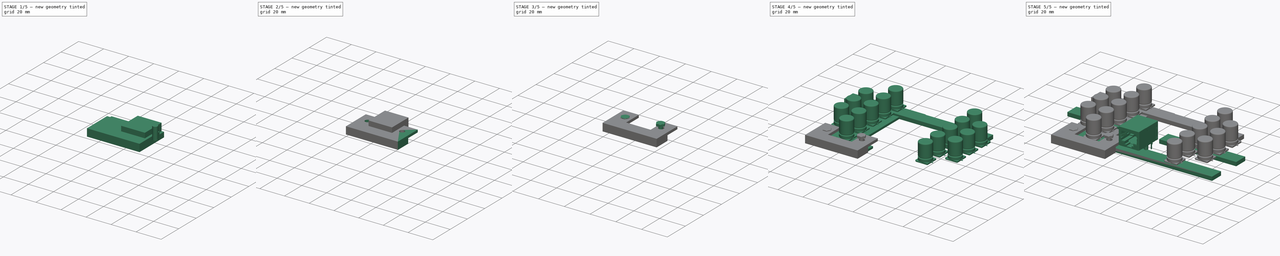
[diagram: build sequence overview — one tinted view per stage of 5, left to right]
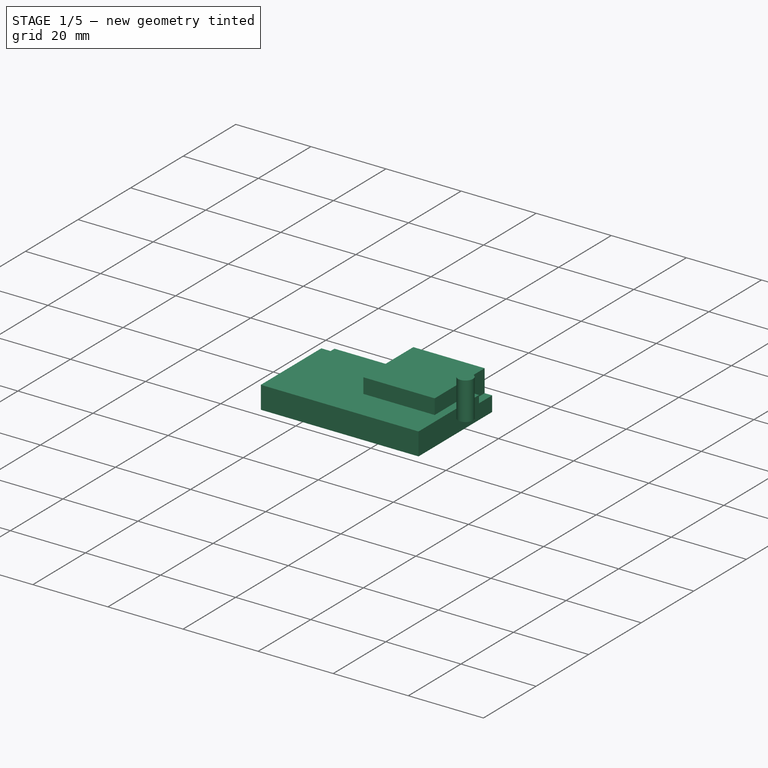
[diagram: stage 1 of 5 — iso view after this stage's code; geometry added in this stage tinted green]
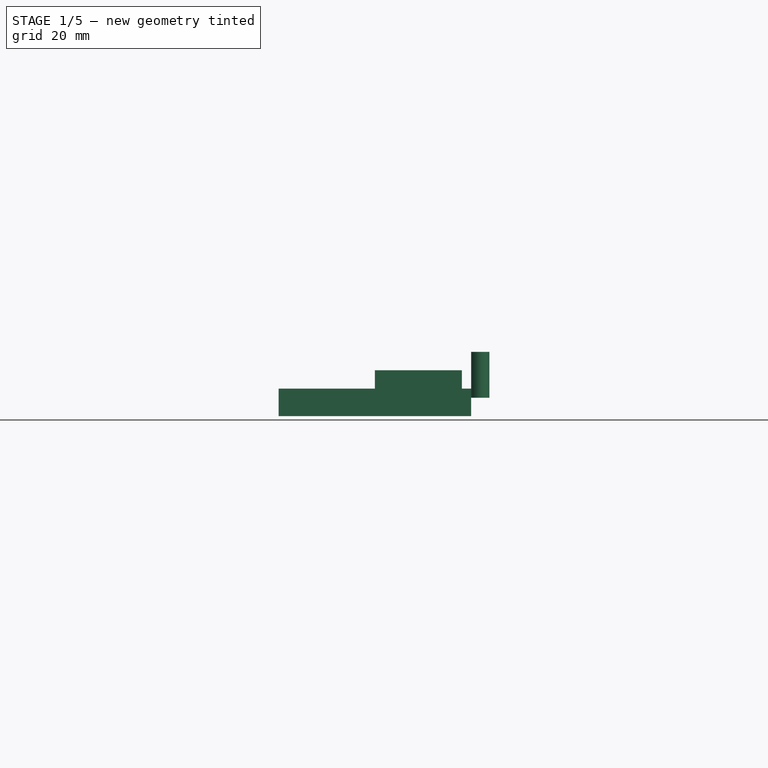
[diagram: stage 1 of 5 — front view after this stage's code; geometry added in this stage tinted green]
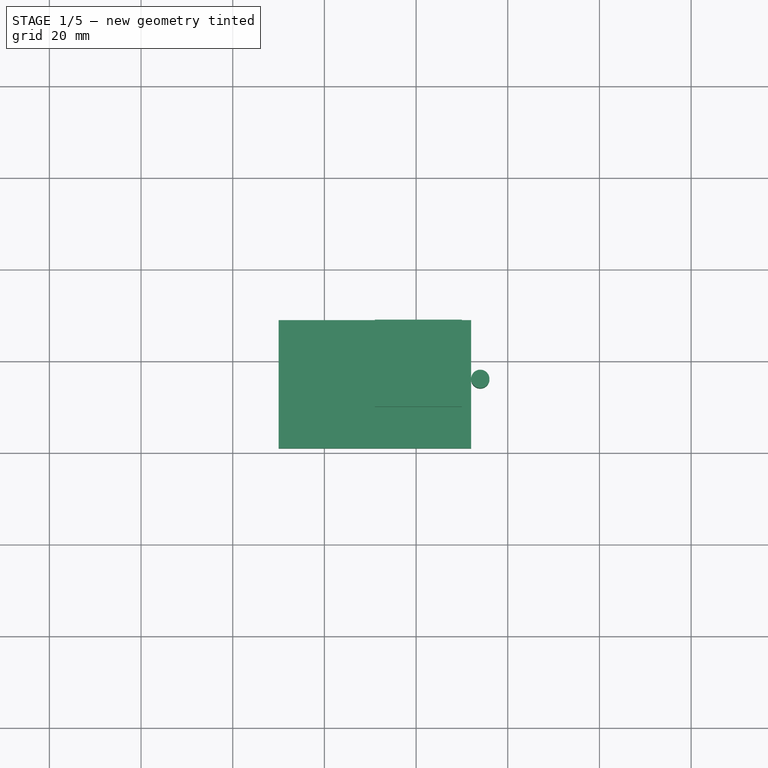
[diagram: stage 1 of 5 — top view after this stage's code; geometry added in this stage tinted green]
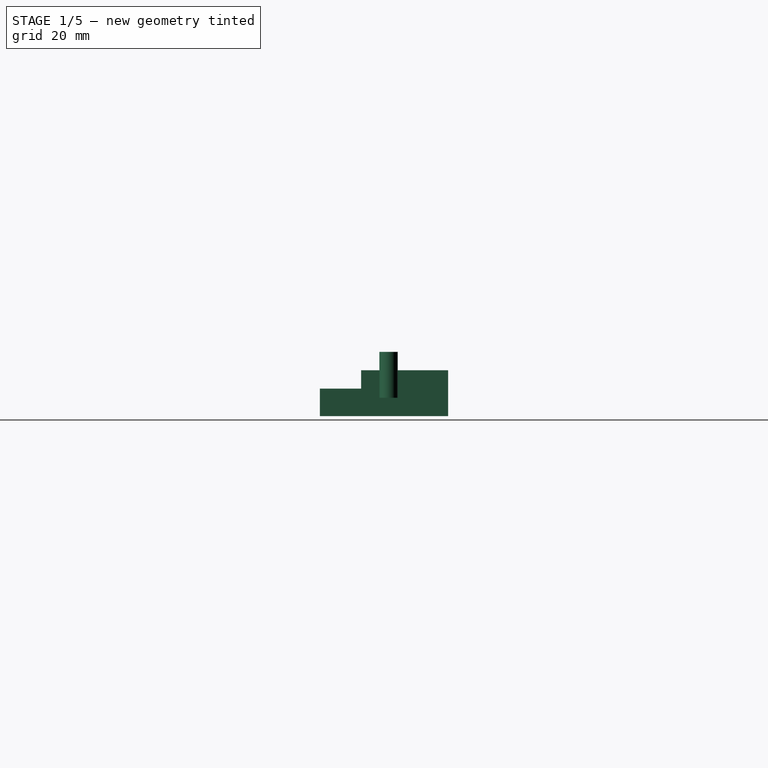
[diagram: stage 1 of 5 — right view after this stage's code; geometry added in this stage tinted green]
FCSTD DOCUMENT  (FreeCAD 0.19R24276 (Git))
Label: Swiches
License: All rights reserved
LicenseURL: http://en.wikipedia.org/wiki/All_rights_reserved
objects: Part::Feature×32, App::Link×17, Path::FeatureArea×12, Part::Box×7, App::Part×5, App::DocumentObjectGroup×5, Part::FeaturePython×4, Part::Cut×4, Sketcher::SketchObject×3, PartDesign::Pad×3, PartDesign::Body×3, Part::Cylinder×2, PartDesign::CoordinateSystem×1, App::LinkGroup×1, Part::Compound×1
note: 85 computed .brp shape members not serialized (recipe doc carries the construction recipe); baked Part::Feature solids carry a one-line shape summary decoded from their .brp

FEATURE [Part::Box] Box005  label="Cube006"
  AttacherType = Attacher::AttachEngine3D
  Height = 4
  Length = 42
  Placement = pos=(-10,-67,0) rot=(0,0,1;0rad)
  Width = 16
FEATURE [Part::Box] Box006  label="Cube007"
  AttacherType = Attacher::AttachEngine3D
  Height = 6
  Length = 42
  Placement = pos=(-10,-79,0) rot=(0,0,1;0rad)
  Width = 23
FEATURE [Part::Cylinder] Cylinder
  Angle = 360
  AttacherType = Attacher::AttachEngine3D
  Height = 10
  Placement = pos=(34,-64,4) rot=(0,0,1;0rad)
  Radius = 2
FEATURE [Part::Box] Box007  label="Cube008"
  AttacherType = Attacher::AttachEngine3D
  Height = 10
  Length = 19
  Placement = pos=(11,-70,0) rot=(0,0,1;0rad)
  Width = 19
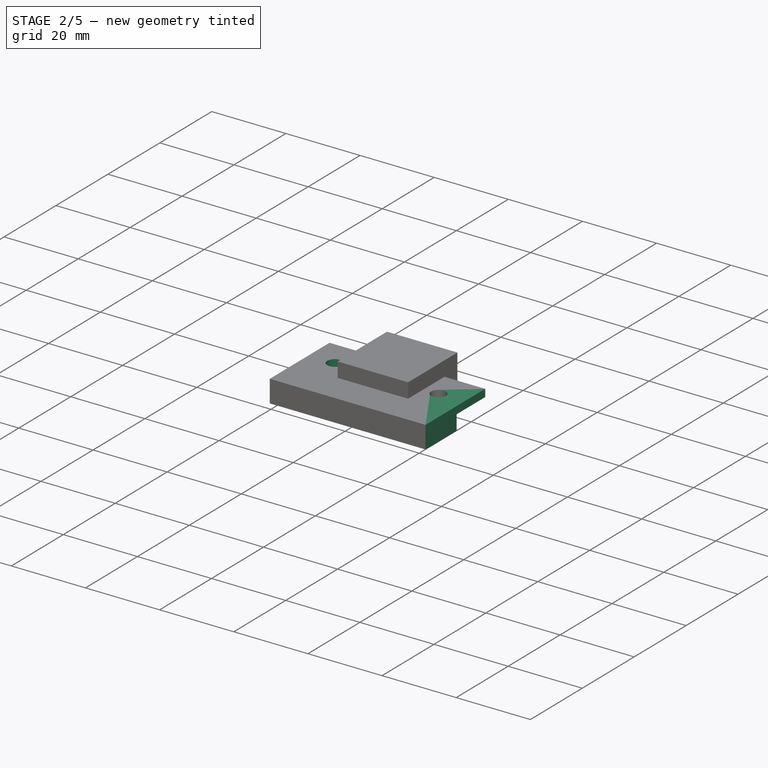
[diagram: stage 2 of 5 — iso view after this stage's code; geometry added in this stage tinted green]
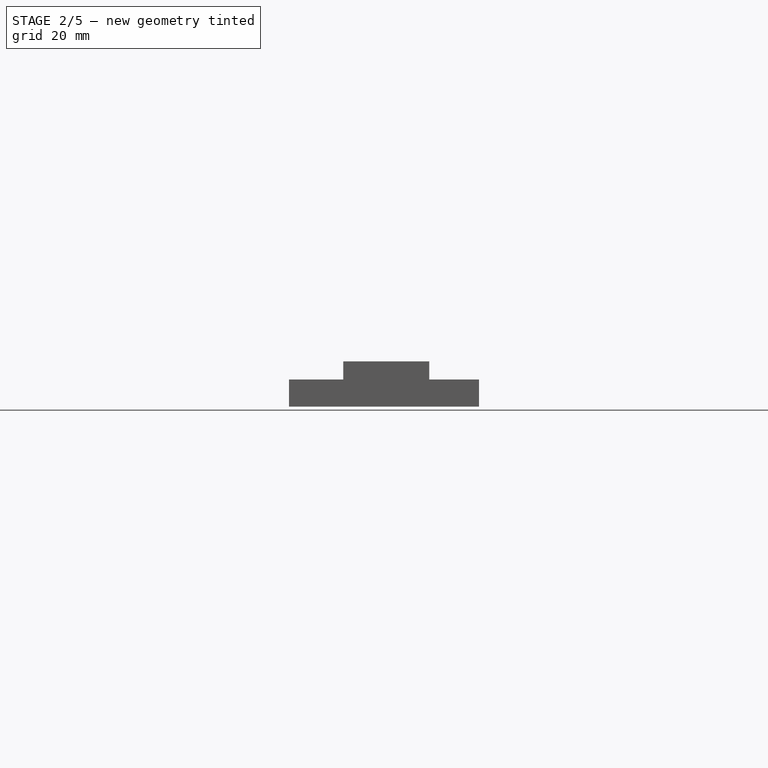
[diagram: stage 2 of 5 — front view after this stage's code; geometry added in this stage tinted green]
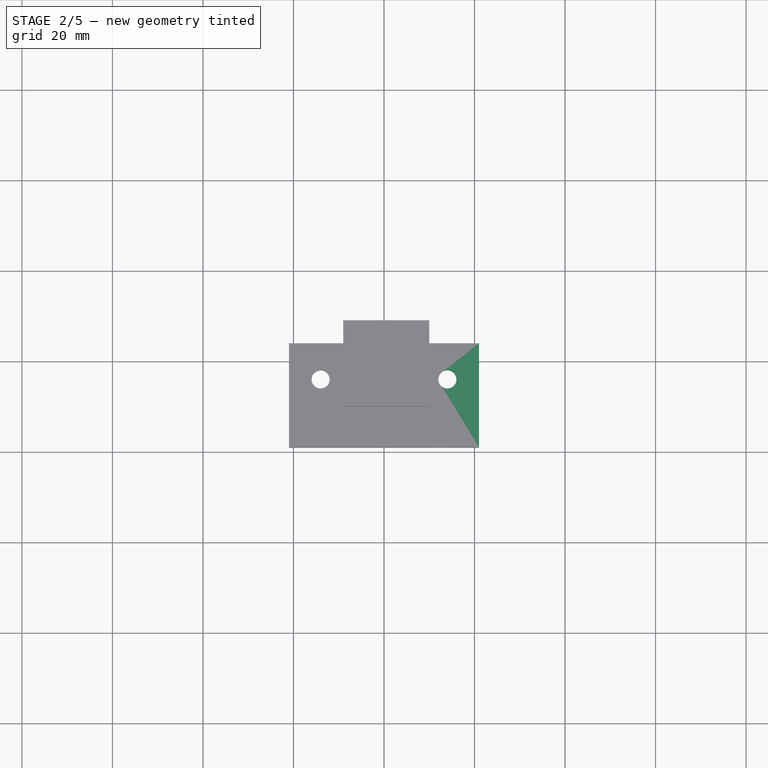
[diagram: stage 2 of 5 — top view after this stage's code; geometry added in this stage tinted green]
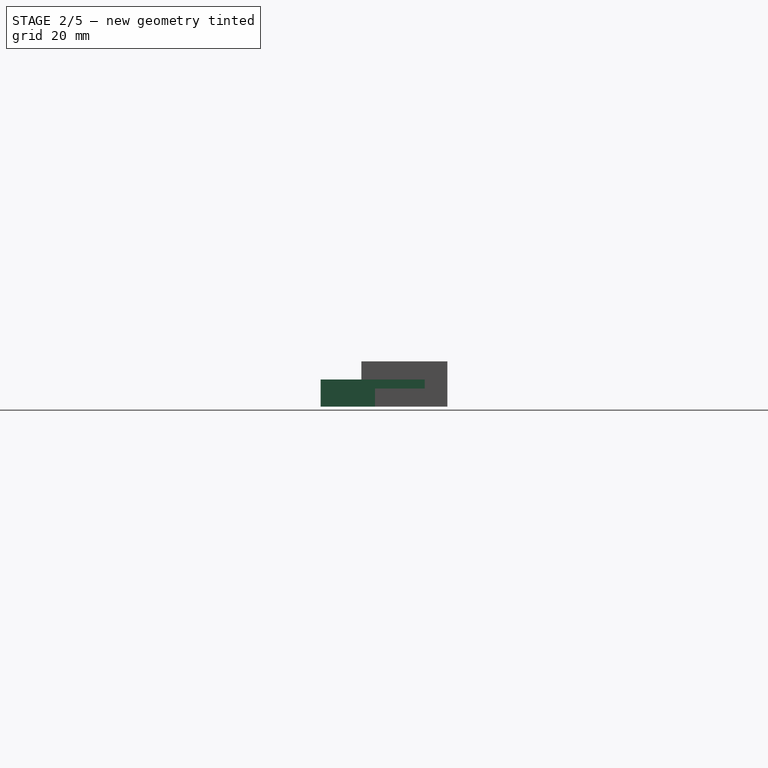
[diagram: stage 2 of 5 — right view after this stage's code; geometry added in this stage tinted green]
FEATURE [Part::Cut] Cut
  Base = -> Box006
  Placement = pos=(9,0,0) rot=(0,0,1;0rad)
  Tool = -> Box005
FEATURE [Part::Cylinder] Cylinder001
  Angle = 360
  AttacherType = Attacher::AttachEngine3D
  Height = 10
  Placement = pos=(6,-64,4) rot=(0,0,1;0rad)
  Radius = 2
FEATURE [Part::Cut] Cut001
  Base = -> Cut
  Tool = -> Cylinder
FEATURE [Part::Cut] Cut002
  Base = -> Cut001
  Tool = -> Cylinder001
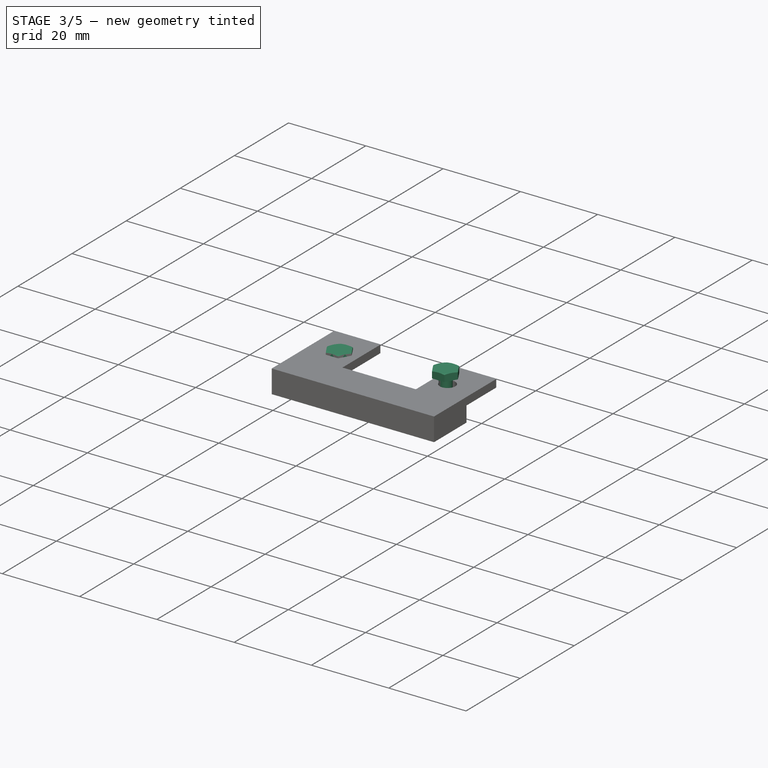
[diagram: stage 3 of 5 — iso view after this stage's code; geometry added in this stage tinted green]
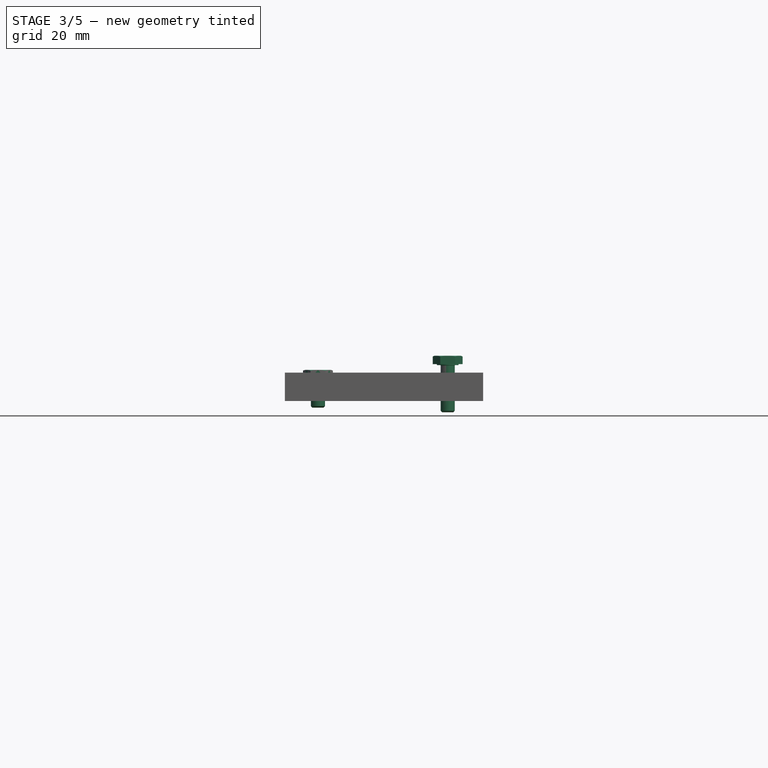
[diagram: stage 3 of 5 — front view after this stage's code; geometry added in this stage tinted green]
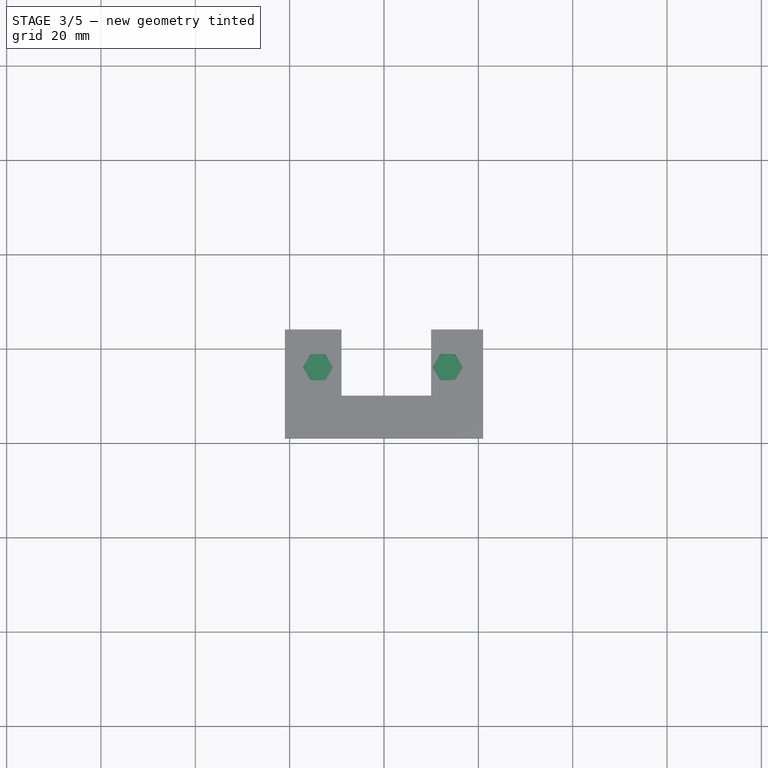
[diagram: stage 3 of 5 — top view after this stage's code; geometry added in this stage tinted green]
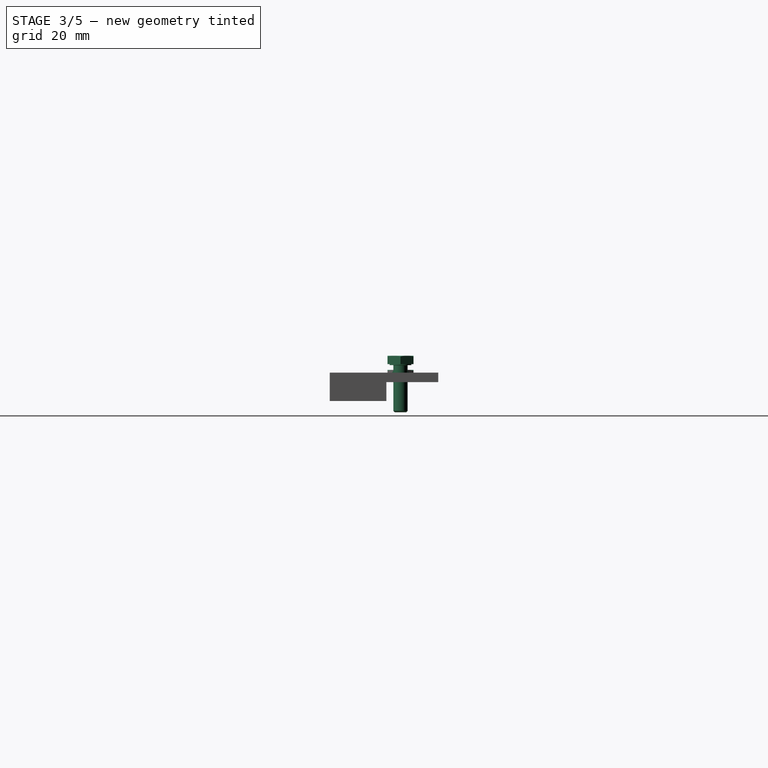
[diagram: stage 3 of 5 — right view after this stage's code; geometry added in this stage tinted green]
FEATURE [Sketcher::SketchObject] Sketch
  FullyConstrained = true
  sketch-geometry (10):
    g0: LineSegment StartX=0 StartY=-70 StartZ=0 EndX=40 EndY=-70 EndZ=0
    g1: LineSegment StartX=40 StartY=-70 StartZ=0 EndX=40 EndY=-60 EndZ=0
    g2: LineSegment StartX=40 StartY=-10 StartZ=0 EndX=40 EndY=0 EndZ=0
    g3: LineSegment StartX=40 StartY=0 StartZ=0 EndX=0 EndY=0 EndZ=0
    g4: LineSegment StartX=40 StartY=-10 StartZ=0 EndX=28 EndY=-10 EndZ=0
    g5: LineSegment StartX=28 StartY=-60 StartZ=0 EndX=40 EndY=-60 EndZ=0
    g6: LineSegment StartX=0 StartY=0 StartZ=0 EndX=0 EndY=-70 EndZ=0
    g7: LineSegment StartX=28 StartY=-10 StartZ=0 EndX=28 EndY=-60 EndZ=0
    g8: Circle CenterX=6 CenterY=-64 CenterZ=0 NormalX=0 NormalY=0 NormalZ=1 AngleXU=0 Radius=1.5
    g9: Circle CenterX=34 CenterY=-64 CenterZ=0 NormalX=0 NormalY=0 NormalZ=1 AngleXU=0 Radius=1.5
  constraints (30):
    c: Coincident(g0,g1)
    c: Coincident(g5,g7)
    c: Coincident(g4,g7)
    c: Coincident(g4,g2)
    c: Coincident(g3,g2)
    c: Coincident(g6,g3)
    c: Coincident(g6,g0)
    c: Vertical(g6)
    c: Vertical(g7)
    c: Vertical(g1)
    c: Vertical(g2)
    c: Horizontal(g0)
    c: Horizontal(g3)
    c: Horizontal(g4)
    c: Horizontal(g5)
    c: Coincident(g1,g5)
    c: Equal(g4,g5)
    c: Equal(g2,g1)
    c: DistanceX(g3,g3) = 40
    c: DistanceY(g6,g6) = 70
    c: DistanceY(g2,g2) = 10
    c: DistanceX(g4,g4) = 12
    c: DistanceX(g3) = 0
    c: DistanceY(g3) = 0
    c: Diameter(g8) = 3
    c: DistanceY(g0,g8) = 6
    c: DistanceX(g0,g8) = 6
    c: DistanceY(g0,g9) = 6
    c: DistanceX(g9,g0) = 6
    c: Diameter(g9) = 3
FEATURE [App::Part] Part001
  Origin = -> Origin005
  Placement = pos=(0,0,10) rot=(0,0,1;0rad)
FEATURE [PartDesign::Pad] Pad
  Direction = (1,1,1)
  Length = 1.6
  Length2 = 100
  Profile = -> Sketch
  Type = 0
FEATURE [PartDesign::Body] Body
  Group = -> [Sketch,Pad]
  Origin = -> Origin008
  Placement = pos=(0,0,3) rot=(0,0,1;0rad)
  Tip = -> Pad
FEATURE [Sketcher::SketchObject] Sketch002
  FullyConstrained = true
  MapMode = 5
  Support = -> [XY_Plane009]
  sketch-geometry (5):
    g0: LineSegment StartX=10 StartY=0 StartZ=0 EndX=60 EndY=0 EndZ=0
    g1: LineSegment StartX=60 StartY=0 StartZ=0 EndX=60 EndY=-70 EndZ=0
    g2: LineSegment StartX=60 StartY=-70 StartZ=0 EndX=10 EndY=-70 EndZ=0
    g3: LineSegment StartX=10 StartY=-70 StartZ=0 EndX=10 EndY=0 EndZ=0
    g4: Circle CenterX=16 CenterY=-64 CenterZ=0 NormalX=0 NormalY=0 NormalZ=1 AngleXU=0 Radius=1.5
  constraints (15):
    c: Coincident(g0,g1)
    c: Coincident(g1,g2)
    c: Coincident(g2,g3)
    c: Coincident(g3,g0)
    c: Horizontal(g0)
    c: Horizontal(g2)
    c: Vertical(g1)
    c: Vertical(g3)
    c: Distance(g0) = 50
    c: Distance(g1) = 70
    c: DistanceX(g0,g-1) = -10
    c: DistanceY(g0,g-1) = 0
    c: DistanceY(g2,g4) = 6
    c: DistanceX(g2,g4) = 6
    c: Diameter(g4) = 3
FEATURE [PartDesign::Pad] Pad001
  Direction = (1,1,1)
  Length = 1.6
  Length2 = 100
  Profile = -> Sketch002
  Type = 0
FEATURE [PartDesign::Body] Body002
  Group = -> [Sketch003,Pad002]
  Origin = -> Origin010
  Placement = pos=(105,-70,3) rot=(0,0,1;3.14159rad)
  Tip = -> Pad002
FEATURE [App::DocumentObjectGroup] Group003  label="Group"
  Group = -> [Body,Array001]
FEATURE [App::DocumentObjectGroup] Group004
  Group = -> [Array002,Body002]
FEATURE [App::DocumentObjectGroup] Group  label="PCB2"
  Group = -> [Group003,Group004]
FEATURE [Part::FeaturePython] Screw001  label="M3x6-Screw001"  # Fasteners workbench fastener (typed FeaturePython)
  Placement = pos=(6,-64,4.6) rot=(0,0,1;0rad)
  baseObject = -> Body [Edge30]
  diameter = 4
  invert = false
  length = 3
  lengthCustom = 6
  matchOuter = false
  offset = 0
  thread = false
  type = 26
FEATURE [Part::FeaturePython] Screw002  label="M3x10-Screw"  # Fasteners workbench fastener (typed FeaturePython)
  Placement = pos=(33.5,-64,7.6) rot=(0,0,1;0rad)
  baseObject = -> Body001 [Edge15]
  diameter = 4
  invert = false
  length = 3
  lengthCustom = 10
  matchOuter = false
  offset = 0
  thread = false
  type = 26
FEATURE [Part::Cut] Cut003
  Base = -> Cut002
  Tool = -> Box007
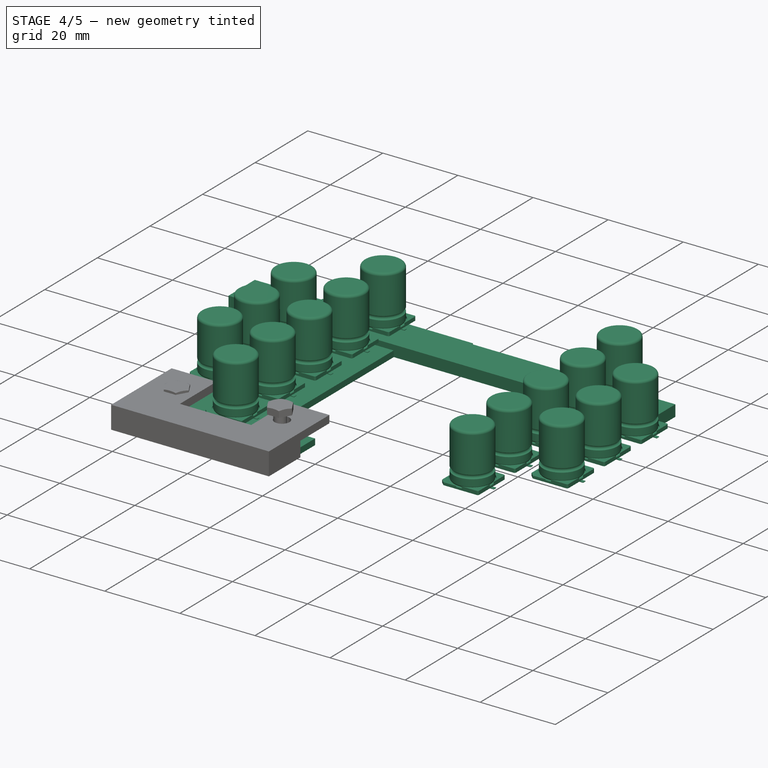
[diagram: stage 4 of 5 — iso view after this stage's code; geometry added in this stage tinted green]
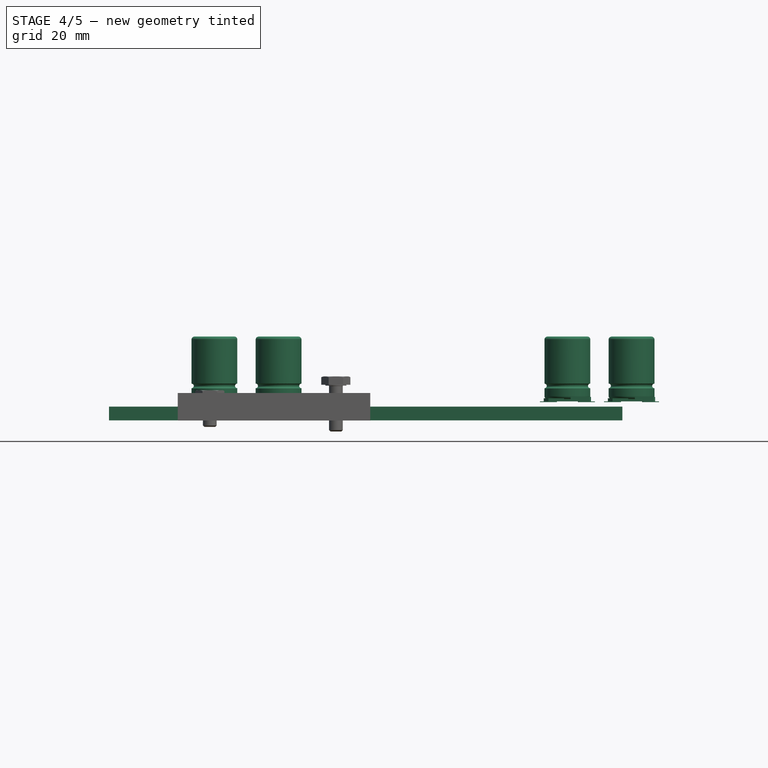
[diagram: stage 4 of 5 — front view after this stage's code; geometry added in this stage tinted green]
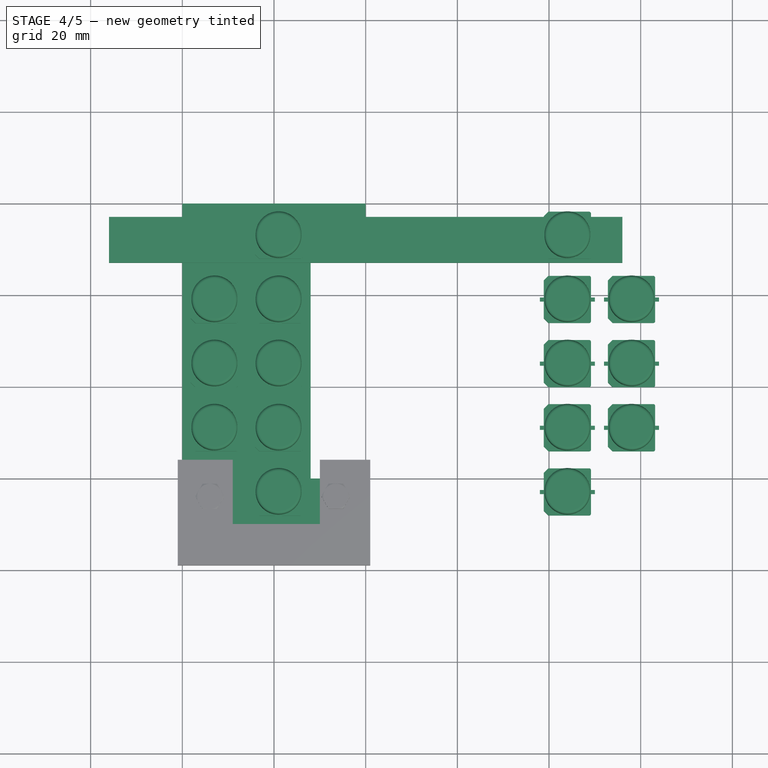
[diagram: stage 4 of 5 — top view after this stage's code; geometry added in this stage tinted green]
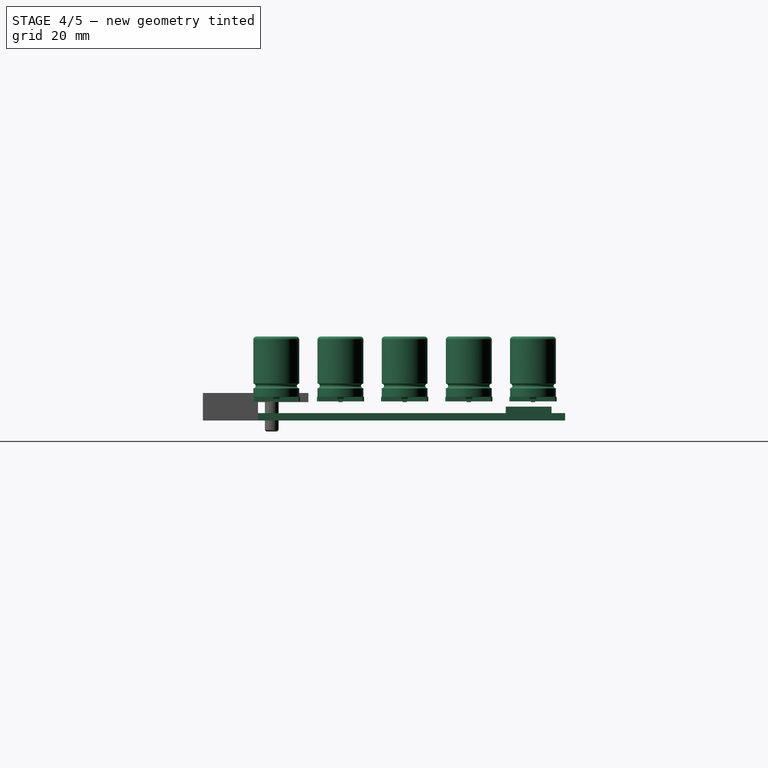
[diagram: stage 4 of 5 — right view after this stage's code; geometry added in this stage tinted green]
FEATURE [App::DocumentObjectGroup] Group002  label="PCB3"
  Group = -> [Part001,Body001,Compound]
FEATURE [Part::FeaturePython] Array001  # Draft array (typed FeaturePython)
  Angle = 360
  ArrayType = 0
  Axis = (0,0,1)
  Base = -> Part__Feature001
  Center = (0,0,0)
  Count = 10
  ExpandArray = false
  Fuse = false
  IntervalAxis = (0,0,0)
  IntervalX = (14,0,0)
  IntervalY = (0,14,0)
  IntervalZ = (0,0,100)
  NumberCircles = 3
  NumberPolar = 5
  NumberX = 2
  NumberY = 5
  NumberZ = 1
  Placement = pos=(7,-63,0) rot=(0,0,1;0rad)
  PlacementList = 10 placements: [(0,0,4),(0,14,4),(0,28,4),(0,42,4),(0,56,4),(14,0,4),(14,14,4),(14,28,4),(14,42,4),(14,56,4)]
  RadialDistance = 50
  ScaleList = (10) [(1,1,1),(1,1,1),(1,1,1),(1,1,1),(1,1,1),(1,1,1),(1,1,1),(1,1,1),(1,1,1),(1,1,1)]
  Symmetry = 1
  TangentialDistance = 25
FEATURE [Part::Feature] Part__Feature014  label="PinSocket_2x10_P127mm_Vertical_SMD001"
  Placement = pos=(50.5,-35,6) rot=(1,0,0;3.14159rad)
  shape: bbox 5.185 x 12.7 x 4.825 mm, 710 faces (baked)
FEATURE [Part::Feature] Part__Feature015  label="PinHeader_2x10_P127mm_Vertical_SMD001"
  Placement = pos=(50.5,-35,6) rot=(1,0,0;3.14159rad)
  shape: bbox 5.57 x 12.7 x 4.4 mm, 444 faces (baked)
FEATURE [Part::Box] Box004  label="Cube005"
  AttacherType = Attacher::AttachEngine3D
  Height = 3
  Length = 112
  Placement = pos=(-16,-12.95,0.01) rot=(0,0,1;0rad)
  Width = 10
FEATURE [App::DocumentObjectGroup] Group001  label="PCB1"
  Group = -> [Board_57a1,LinkGroup,Box,Box001,Box002,Box004]
FEATURE [Part::Feature] Part__Feature027  label="CP_Elec_10x144"
  Placement = pos=(0,0,4) rot=(0,0,1;0rad)
  shape: bbox 13.47 x 13.66 x 14.3 mm, 41 faces (baked)
FEATURE [Part::FeaturePython] Array002  # Draft array (typed FeaturePython)
  Angle = 360
  ArrayType = 0
  Axis = (0,0,1)
  Base = -> Part__Feature027
  Center = (0,0,0)
  Count = 10
  ExpandArray = false
  Fuse = false
  IntervalAxis = (0,0,0)
  IntervalX = (14,0,0)
  IntervalY = (0,14,0)
  IntervalZ = (0,0,100)
  NumberCircles = 3
  NumberPolar = 5
  NumberX = 2
  NumberY = 5
  NumberZ = 1
  Placement = pos=(84,-63,0) rot=(0,0,1;0rad)
  PlacementList = 10 placements: [(0,0,4),(0,14,4),(0,28,4),(0,42,4),(0,56,4),(14,0,4),(14,14,4),(14,28,4),(14,42,4),(14,56,4)]
  RadialDistance = 50
  ScaleList = (10) [(1,1,1),(1,1,1),(1,1,1),(1,1,1),(1,1,1),(1,1,1),(1,1,1),(1,1,1),(1,1,1),(1,1,1)]
  Symmetry = 1
  TangentialDistance = 25
FEATURE [Sketcher::SketchObject] Sketch003
  FullyConstrained = true
  sketch-geometry (8):
    g0: LineSegment StartX=0 StartY=-70 StartZ=0 EndX=40 EndY=-70 EndZ=0
    g1: LineSegment StartX=40 StartY=-70 StartZ=0 EndX=40 EndY=-60 EndZ=0
    g2: LineSegment StartX=40 StartY=-10 StartZ=0 EndX=40 EndY=0 EndZ=0
    g3: LineSegment StartX=40 StartY=0 StartZ=0 EndX=0 EndY=0 EndZ=0
    g4: LineSegment StartX=40 StartY=-10 StartZ=0 EndX=28 EndY=-10 EndZ=0
    g5: LineSegment StartX=28 StartY=-60 StartZ=0 EndX=40 EndY=-60 EndZ=0
    g6: LineSegment StartX=0 StartY=0 StartZ=0 EndX=0 EndY=-70 EndZ=0
    g7: LineSegment StartX=28 StartY=-10 StartZ=0 EndX=28 EndY=-60 EndZ=0
  constraints (24):
    c: Coincident(g0,g1)
    c: Coincident(g5,g7)
    c: Coincident(g4,g7)
    c: Coincident(g4,g2)
    c: Coincident(g3,g2)
    c: Coincident(g6,g3)
    c: Coincident(g6,g0)
    c: Vertical(g6)
    c: Vertical(g7)
    c: Vertical(g1)
    c: Vertical(g2)
    c: Horizontal(g0)
    c: Horizontal(g3)
    c: Horizontal(g4)
    c: Horizontal(g5)
    c: Coincident(g1,g5)
    c: Equal(g4,g5)
    c: Equal(g2,g1)
    c: DistanceX(g3,g3) = 40
    c: DistanceY(g6,g6) = 70
    c: DistanceY(g2,g2) = 10
    c: DistanceX(g4,g4) = 12
    c: DistanceX(g3) = 0
    c: DistanceY(g3) = 0
FEATURE [PartDesign::Pad] Pad002
  Direction = (1,1,1)
  Length = 1.6
  Length2 = 100
  Profile = -> Sketch003
  Type = 0
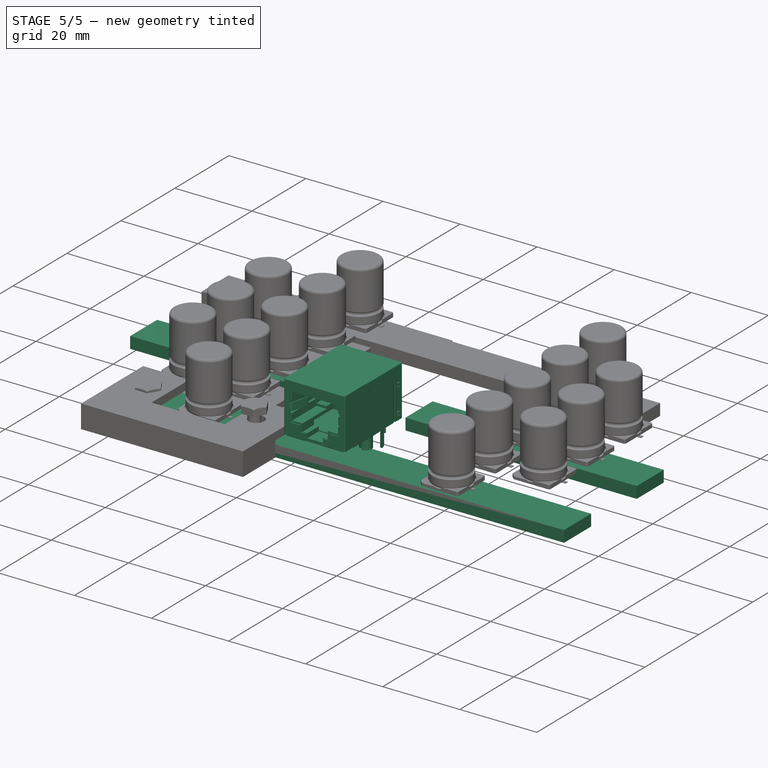
[diagram: stage 5 of 5 — iso view after this stage's code; geometry added in this stage tinted green]
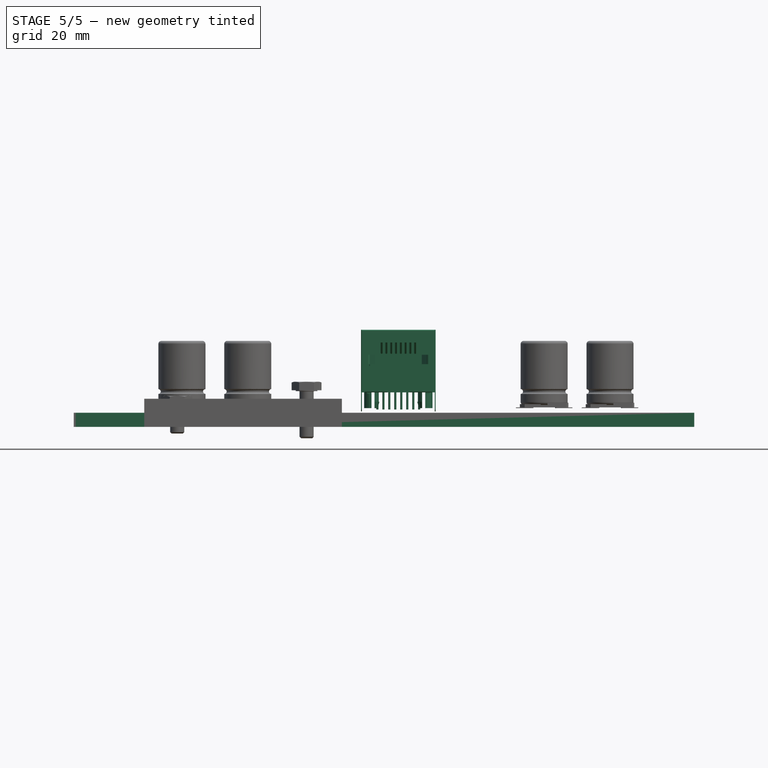
[diagram: stage 5 of 5 — front view after this stage's code; geometry added in this stage tinted green]
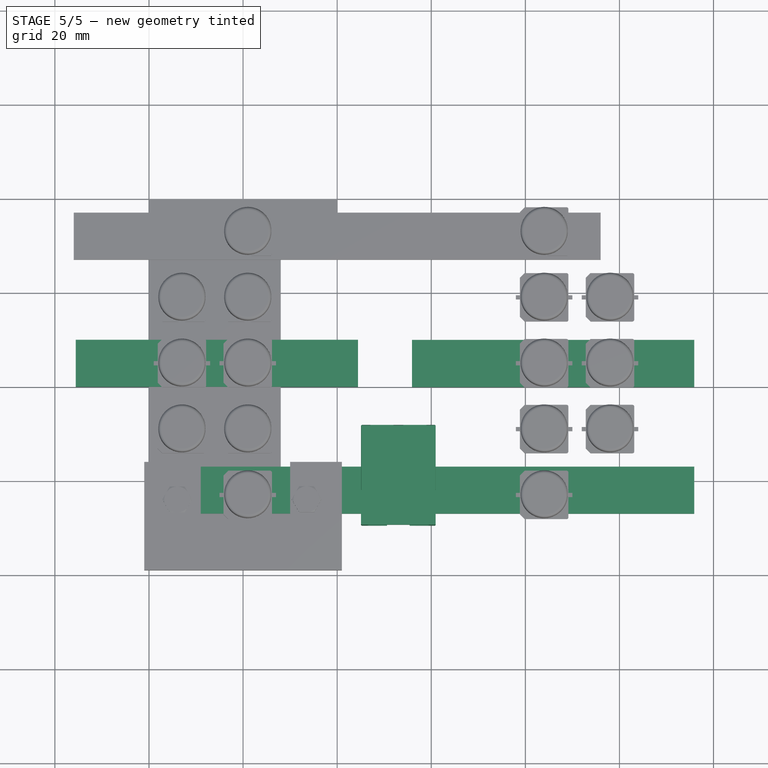
[diagram: stage 5 of 5 — top view after this stage's code; geometry added in this stage tinted green]
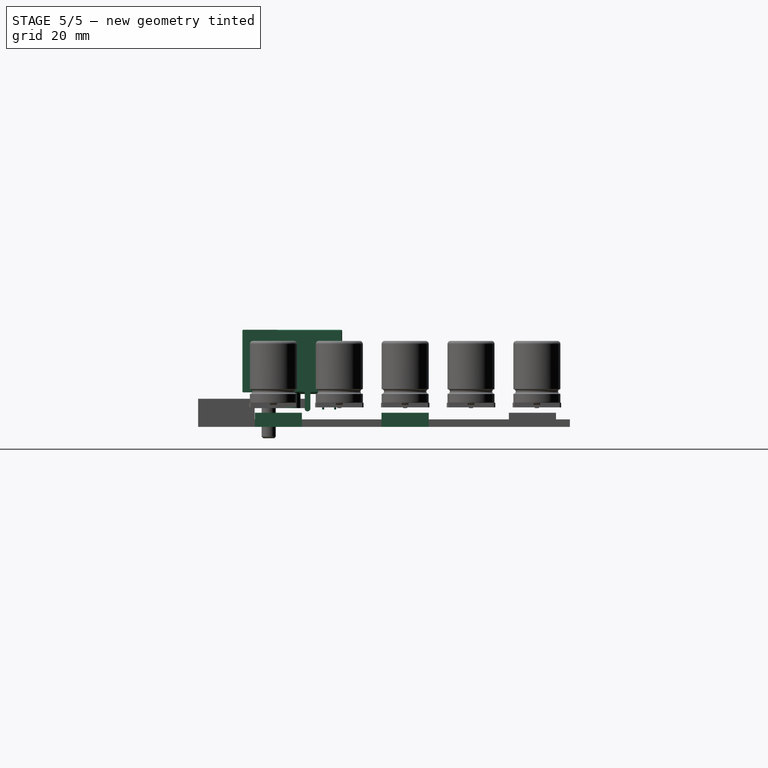
[diagram: stage 5 of 5 — right view after this stage's code; geometry added in this stage tinted green]
FEATURE [PartDesign::CoordinateSystem] Local_CS_57a1
  AttacherType = Attacher::AttachEngine3D
FEATURE [Part::Feature] Pcb_57a1
  Placement = pos=(-102.25,67,0) rot=(0,0,1;0rad)
  shape: bbox 104 x 70 x 1 mm, 22 faces (baked)
FEATURE [App::Part] Board_Geoms_57a1
  Group = -> [Local_CS_57a1,Pcb_57a1]
  Origin = -> Origin
FEATURE [Part::Feature] Shape001  label="R110_R_1210_3225Metric_605E0A44"
  Placement = pos=(95.25,-46.75,0) rot=(0,0,-1;1.5708rad)
  shape: bbox 2.5 x 3.2 x 0.55 mm, 26 faces (baked)
FEATURE [App::Link] R110_R_1210_3225Metric_605E0A44_ln_  label="R109_R_1210_3225Metric_605E0A33"
  LinkPlacement = pos=(6,-46.5,0) rot=(0,0,-1;1.5708rad)
  LinkedObject = -> Shape001
  Placement = pos=(6,-46.5,0) rot=(0,0,-1;1.5708rad)
FEATURE [App::Link] R110_R_1210_3225Metric_605E0A44_ln_001  label="R102_R_1210_3225Metric_605E09BC"
  LinkPlacement = pos=(95.25,-19.75,0) rot=(0,0,-1;1.5708rad)
  LinkedObject = -> Shape001
  Placement = pos=(95.25,-19.75,0) rot=(0,0,-1;1.5708rad)
FEATURE [App::Link] R110_R_1210_3225Metric_605E0A44_ln_002  label="R101_R_1210_3225Metric_605E09AB"
  LinkPlacement = pos=(6,-20.05,0) rot=(0,0,-1;1.5708rad)
  LinkedObject = -> Shape001
  Placement = pos=(6,-20.05,0) rot=(0,0,-1;1.5708rad)
FEATURE [Part::Feature] Shape002  label="C106_C_1210_3225Metric_605E02F8"
  Placement = pos=(95.25,-52.25,0) rot=(0,0,-1;1.5708rad)
  shape: bbox 2.5 x 3.2 x 2.5 mm, 28 faces (baked)
FEATURE [App::Link] C106_C_1210_3225Metric_605E02F8_ln_  label="C105_C_1210_3225Metric_605E02E7"
  LinkPlacement = pos=(6,-52,0) rot=(0,0,-1;1.5708rad)
  LinkedObject = -> Shape002
  Placement = pos=(6,-52,0) rot=(0,0,-1;1.5708rad)
FEATURE [App::Link] C106_C_1210_3225Metric_605E02F8_ln_001  label="C103_C_1210_3225Metric_605E02C5"
  LinkPlacement = pos=(95.25,-25.5,0) rot=(0,0,-1;1.5708rad)
  LinkedObject = -> Shape002
  Placement = pos=(95.25,-25.5,0) rot=(0,0,-1;1.5708rad)
FEATURE [App::Link] C106_C_1210_3225Metric_605E02F8_ln_002  label="C102_C_1210_3225Metric_605E02B4"
  LinkPlacement = pos=(6,-25.5,0) rot=(0,0,-1;1.5708rad)
  LinkedObject = -> Shape002
  Placement = pos=(6,-25.5,0) rot=(0,0,-1;1.5708rad)
FEATURE [Part::Feature] Shape004  label="Q112_Infineon_PG_HSOF_8_1_605C81D9"
  Placement = pos=(85.9,-48.5,0) rot=(0,0,1;1.5708rad)
  shape: bbox 9.9 x 11.68 x 2.32 mm, 90 faces (baked)
FEATURE [App::Link] Q112_Infineon_PG_HSOF_8_1_605C81D9_ln_  label="Q111_Infineon_PG_HSOF_8_1_605C7EA9"
  LinkPlacement = pos=(73.4,-48.5,0) rot=(0,0,1;1.5708rad)
  LinkedObject = -> Shape004
  Placement = pos=(73.4,-48.5,0) rot=(0,0,1;1.5708rad)
FEATURE [App::Link] Q112_Infineon_PG_HSOF_8_1_605C81D9_ln_001  label="Q110_Infineon_PG_HSOF_8_1_605F5F48"
  LinkPlacement = pos=(60.9,-48.5,0) rot=(0,0,1;1.5708rad)
  LinkedObject = -> Shape004
  Placement = pos=(60.9,-48.5,0) rot=(0,0,1;1.5708rad)
FEATURE [App::Link] Q112_Infineon_PG_HSOF_8_1_605C81D9_ln_002  label="Q109_Infineon_PG_HSOF_8_1_605C810D"
  LinkPlacement = pos=(40.6,-48.5,0) rot=(0,0,1;1.5708rad)
  LinkedObject = -> Shape004
  Placement = pos=(40.6,-48.5,0) rot=(0,0,1;1.5708rad)
FEATURE [App::Link] Q112_Infineon_PG_HSOF_8_1_605C81D9_ln_003  label="Q108_Infineon_PG_HSOF_8_1_605C8041"
  LinkPlacement = pos=(28.1,-48.5,0) rot=(0,0,1;1.5708rad)
  LinkedObject = -> Shape004
  Placement = pos=(28.1,-48.5,0) rot=(0,0,1;1.5708rad)
FEATURE [App::Link] Q112_Infineon_PG_HSOF_8_1_605C81D9_ln_004  label="Q107_Infineon_PG_HSOF_8_1_605C7F75"
  LinkPlacement = pos=(15.6,-48.5,0) rot=(0,0,1;1.5708rad)
  LinkedObject = -> Shape004
  Placement = pos=(15.6,-48.5,0) rot=(0,0,1;1.5708rad)
FEATURE [App::Link] Q112_Infineon_PG_HSOF_8_1_605C81D9_ln_005  label="Q106_Infineon_PG_HSOF_8_1_605C4E63"
  LinkPlacement = pos=(85.8,-21.5,0) rot=(0,0,1;1.5708rad)
  LinkedObject = -> Shape004
  Placement = pos=(85.8,-21.5,0) rot=(0,0,1;1.5708rad)
FEATURE [App::Link] Q112_Infineon_PG_HSOF_8_1_605C81D9_ln_006  label="Q105_Infineon_PG_HSOF_8_1_605C4E1E"
  LinkPlacement = pos=(73.25,-21.5,0) rot=(0,0,1;1.5708rad)
  LinkedObject = -> Shape004
  Placement = pos=(73.25,-21.5,0) rot=(0,0,1;1.5708rad)
FEATURE [App::Link] Q112_Infineon_PG_HSOF_8_1_605C81D9_ln_007  label="Q104_Infineon_PG_HSOF_8_1_605C5807"
  LinkPlacement = pos=(60.8,-21.5,0) rot=(0,0,1;1.5708rad)
  LinkedObject = -> Shape004
  Placement = pos=(60.8,-21.5,0) rot=(0,0,1;1.5708rad)
FEATURE [App::Link] Q112_Infineon_PG_HSOF_8_1_605C81D9_ln_008  label="Q103_Infineon_PG_HSOF_8_1_605C8D17"
  LinkPlacement = pos=(40.3,-21.5,0) rot=(0,0,1;1.5708rad)
  LinkedObject = -> Shape004
  Placement = pos=(40.3,-21.5,0) rot=(0,0,1;1.5708rad)
FEATURE [App::Link] Q112_Infineon_PG_HSOF_8_1_605C81D9_ln_009  label="Q102_Infineon_PG_HSOF_8_1_605C4D4F"
  LinkPlacement = pos=(27.8,-21.5,0) rot=(0,0,1;1.5708rad)
  LinkedObject = -> Shape004
  Placement = pos=(27.8,-21.5,0) rot=(0,0,1;1.5708rad)
FEATURE [App::Link] Q112_Infineon_PG_HSOF_8_1_605C81D9_ln_010  label="Q101_Infineon_PG_HSOF_8_1_605C4D0A"
  LinkPlacement = pos=(15.25,-21.5,0) rot=(0,0,1;1.5708rad)
  LinkedObject = -> Shape004
  Placement = pos=(15.25,-21.5,0) rot=(0,0,1;1.5708rad)
FEATURE [App::Part] Top_57a1
  Group = -> [Shape001,R110_R_1210_3225Metric_605E0A44_ln_,R110_R_1210_3225Metric_605E0A44_ln_001,R110_R_1210_3225Metric_605E0A44_ln_002,Shape002,C106_C_1210_3225Metric_605E02F8_ln_,C106_C_1210_3225Metric_605E02F8_ln_001,C106_C_1210_3225Metric_605E02F8_ln_002,Shape004,Q112_Infineon_PG_HSOF_8_1_605C81D9_ln_,Q112_Infineon_PG_HSOF_8_1_605C81D9_ln_001,Q112_Infineon_PG_HSOF_8_1_605C81D9_ln_002,+8 more]
  Origin = -> Origin003
FEATURE [App::Part] Step_Models_57a1
  Group = -> [Top_57a1]
  Origin = -> Origin002
FEATURE [App::Part] Board_57a1  label="Switches"
  Group = -> [Board_Geoms_57a1,Step_Models_57a1]
  Origin = -> Origin001
FEATURE [Part::Feature] holes_wire  label="holes_wire#F.Cu#0"
  shape: bbox 80.8 x 38.05 x 2e-07 mm, 0 faces, 0 solids (baked)
FEATURE [Part::Feature] pads_wire  label="pads_wire#F.Cu#0#J105"
  shape: bbox 4.24 x 19.48 x 2e-07 mm, 0 faces, 0 solids (baked)
FEATURE [Path::FeatureArea] pads_area  label="pads_area#F.Cu#0#J105"
  Accuracy = 0.01
  Angle = 45
  AngleShift = 0
  CleanDistance = 0
  ClipFill = 0
  ClipperScale = 10000000
  Coplanar = 0
  Deflection = 0.01
  EndType = 0
  Explode = false
  ExtraPass = 0
  Fill = 1
  FitArcs = false
  FromCenter = false
  JoinType = 0
  LastStepover = 0
  MaxArcPoints = 100
  MinArcPoints = 4
  MiterLimit = 2
  OpenMode = 0
  Operation = 0
  Outline = false
  Placement = pos=(154,-112.5,0) rot=(0,0,1;3.14159rad)
  PocketExtraOffset = 0
  PocketLastStepover = 0
  PocketMode = 0
  PocketStepover = 0
  Project = false
  Reorient = false
  RoundPrecision = 0
  SectionCount = 0
  SectionMode = 2
  SectionOffset = 0
  SectionTolerance = 1e-06
  Shift = 0
  Simplify = false
  Sources = -> [pads_wire]
  Stepdown = 1
  Stepover = 0
  SubjectFill = 0
  Thicken = false
  Tolerance = 1e-07
  ToolRadius = 1
  Unit = 1
FEATURE [Part::Feature] pads_wire001  label="pads_wire001#F.Cu#1#R110"
  shape: bbox 4.4 x 2.65 x 2e-07 mm, 0 faces, 0 solids (baked)
FEATURE [Path::FeatureArea] pads_area001  label="pads_area001#F.Cu#1#R110"
  Accuracy = 0.01
  Angle = 45
  AngleShift = 0
  CleanDistance = 0
  ClipFill = 0
  ClipperScale = 10000000
  Coplanar = 0
  Deflection = 0.01
  EndType = 0
  Explode = false
  ExtraPass = 0
  Fill = 1
  FitArcs = false
  FromCenter = false
  JoinType = 0
  LastStepover = 0
  MaxArcPoints = 100
  MinArcPoints = 4
  MiterLimit = 2
  OpenMode = 0
  Operation = 0
  Outline = false
  Placement = pos=(197.5,-113.75,0) rot=(0,0,-1;1.5708rad)
  PocketExtraOffset = 0
  PocketLastStepover = 0
  PocketMode = 0
  PocketStepover = 0
  Project = false
  Reorient = false
  RoundPrecision = 0
  SectionCount = 0
  SectionMode = 2
  SectionOffset = 0
  SectionTolerance = 1e-06
  Shift = 0
  Simplify = false
  Sources = -> [pads_wire001]
  Stepdown = 1
  Stepover = 0
  SubjectFill = 0
  Thicken = false
  Tolerance = 1e-07
  ToolRadius = 1
  Unit = 1
FEATURE [Part::Feature] pads_wire002  label="pads_wire002#F.Cu#2#R109"
  shape: bbox 4.4 x 2.65 x 2e-07 mm, 0 faces, 0 solids (baked)
FEATURE [Path::FeatureArea] pads_area002  label="pads_area002#F.Cu#2#R109"
  Accuracy = 0.01
  Angle = 45
  AngleShift = 0
  CleanDistance = 0
  ClipFill = 0
  ClipperScale = 10000000
  Coplanar = 0
  Deflection = 0.01
  EndType = 0
  Explode = false
  ExtraPass = 0
  Fill = 1
  FitArcs = false
  FromCenter = false
  JoinType = 0
  LastStepover = 0
  MaxArcPoints = 100
  MinArcPoints = 4
  MiterLimit = 2
  OpenMode = 0
  Operation = 0
  Outline = false
  Placement = pos=(108.25,-113.5,0) rot=(0,0,-1;1.5708rad)
  PocketExtraOffset = 0
  PocketLastStepover = 0
  PocketMode = 0
  PocketStepover = 0
  Project = false
  Reorient = false
  RoundPrecision = 0
  SectionCount = 0
  SectionMode = 2
  SectionOffset = 0
  SectionTolerance = 1e-06
  Shift = 0
  Simplify = false
  Sources = -> [pads_wire002]
  Stepdown = 1
  Stepover = 0
  SubjectFill = 0
  Thicken = false
  Tolerance = 1e-07
  ToolRadius = 1
  Unit = 1
FEATURE [Part::Feature] pads_wire003  label="pads_wire003#F.Cu#3#R102"
  shape: bbox 4.4 x 2.65 x 2e-07 mm, 0 faces, 0 solids (baked)
FEATURE [Path::FeatureArea] pads_area003  label="pads_area003#F.Cu#3#R102"
  Accuracy = 0.01
  Angle = 45
  AngleShift = 0
  CleanDistance = 0
  ClipFill = 0
  ClipperScale = 10000000
  Coplanar = 0
  Deflection = 0.01
  EndType = 0
  Explode = false
  ExtraPass = 0
  Fill = 1
  FitArcs = false
  FromCenter = false
  JoinType = 0
  LastStepover = 0
  MaxArcPoints = 100
  MinArcPoints = 4
  MiterLimit = 2
  OpenMode = 0
  Operation = 0
  Outline = false
  Placement = pos=(197.5,-86.75,0) rot=(0,0,-1;1.5708rad)
  PocketExtraOffset = 0
  PocketLastStepover = 0
  PocketMode = 0
  PocketStepover = 0
  Project = false
  Reorient = false
  RoundPrecision = 0
  SectionCount = 0
  SectionMode = 2
  SectionOffset = 0
  SectionTolerance = 1e-06
  Shift = 0
  Simplify = false
  Sources = -> [pads_wire003]
  Stepdown = 1
  Stepover = 0
  SubjectFill = 0
  Thicken = false
  Tolerance = 1e-07
  ToolRadius = 1
  Unit = 1
FEATURE [Part::Feature] pads_wire004  label="pads_wire004#F.Cu#4#R101"
  shape: bbox 4.4 x 2.65 x 2e-07 mm, 0 faces, 0 solids (baked)
FEATURE [Path::FeatureArea] pads_area004  label="pads_area004#F.Cu#4#R101"
  Accuracy = 0.01
  Angle = 45
  AngleShift = 0
  CleanDistance = 0
  ClipFill = 0
  ClipperScale = 10000000
  Coplanar = 0
  Deflection = 0.01
  EndType = 0
  Explode = false
  ExtraPass = 0
  Fill = 1
  FitArcs = false
  FromCenter = false
  JoinType = 0
  LastStepover = 0
  MaxArcPoints = 100
  MinArcPoints = 4
  MiterLimit = 2
  OpenMode = 0
  Operation = 0
  Outline = false
  Placement = pos=(108.25,-87.05,0) rot=(0,0,-1;1.5708rad)
  PocketExtraOffset = 0
  PocketLastStepover = 0
  PocketMode = 0
  PocketStepover = 0
  Project = false
  Reorient = false
  RoundPrecision = 0
  SectionCount = 0
  SectionMode = 2
  SectionOffset = 0
  SectionTolerance = 1e-06
  Shift = 0
  Simplify = false
  Sources = -> [pads_wire004]
  Stepdown = 1
  Stepover = 0
  SubjectFill = 0
  Thicken = false
  Tolerance = 1e-07
  ToolRadius = 1
  Unit = 1
FEATURE [Part::Feature] pads_wire005  label="pads_wire005#F.Cu#5#C106"
  shape: bbox 4.45 x 2.7 x 2e-07 mm, 0 faces, 0 solids (baked)
FEATURE [Path::FeatureArea] pads_area005  label="pads_area005#F.Cu#5#C106"
  Accuracy = 0.01
  Angle = 45
  AngleShift = 0
  CleanDistance = 0
  ClipFill = 0
  ClipperScale = 10000000
  Coplanar = 0
  Deflection = 0.01
  EndType = 0
  Explode = false
  ExtraPass = 0
  Fill = 1
  FitArcs = false
  FromCenter = false
  JoinType = 0
  LastStepover = 0
  MaxArcPoints = 100
  MinArcPoints = 4
  MiterLimit = 2
  OpenMode = 0
  Operation = 0
  Outline = false
  Placement = pos=(197.5,-119.25,0) rot=(0,0,-1;1.5708rad)
  PocketExtraOffset = 0
  PocketLastStepover = 0
  PocketMode = 0
  PocketStepover = 0
  Project = false
  Reorient = false
  RoundPrecision = 0
  SectionCount = 0
  SectionMode = 2
  SectionOffset = 0
  SectionTolerance = 1e-06
  Shift = 0
  Simplify = false
  Sources = -> [pads_wire005]
  Stepdown = 1
  Stepover = 0
  SubjectFill = 0
  Thicken = false
  Tolerance = 1e-07
  ToolRadius = 1
  Unit = 1
FEATURE [Part::Feature] pads_wire006  label="pads_wire006#F.Cu#6#C105"
  shape: bbox 4.45 x 2.7 x 2e-07 mm, 0 faces, 0 solids (baked)
FEATURE [Path::FeatureArea] pads_area006  label="pads_area006#F.Cu#6#C105"
  Accuracy = 0.01
  Angle = 45
  AngleShift = 0
  CleanDistance = 0
  ClipFill = 0
  ClipperScale = 10000000
  Coplanar = 0
  Deflection = 0.01
  EndType = 0
  Explode = false
  ExtraPass = 0
  Fill = 1
  FitArcs = false
  FromCenter = false
  JoinType = 0
  LastStepover = 0
  MaxArcPoints = 100
  MinArcPoints = 4
  MiterLimit = 2
  OpenMode = 0
  Operation = 0
  Outline = false
  Placement = pos=(108.25,-119,0) rot=(0,0,-1;1.5708rad)
  PocketExtraOffset = 0
  PocketLastStepover = 0
  PocketMode = 0
  PocketStepover = 0
  Project = false
  Reorient = false
  RoundPrecision = 0
  SectionCount = 0
  SectionMode = 2
  SectionOffset = 0
  SectionTolerance = 1e-06
  Shift = 0
  Simplify = false
  Sources = -> [pads_wire006]
  Stepdown = 1
  Stepover = 0
  SubjectFill = 0
  Thicken = false
  Tolerance = 1e-07
  ToolRadius = 1
  Unit = 1
FEATURE [Part::Feature] pads_wire007  label="pads_wire007#F.Cu#7#C103"
  shape: bbox 4.45 x 2.7 x 2e-07 mm, 0 faces, 0 solids (baked)
FEATURE [Path::FeatureArea] pads_area007  label="pads_area007#F.Cu#7#C103"
  Accuracy = 0.01
  Angle = 45
  AngleShift = 0
  CleanDistance = 0
  ClipFill = 0
  ClipperScale = 10000000
  Coplanar = 0
  Deflection = 0.01
  EndType = 0
  Explode = false
  ExtraPass = 0
  Fill = 1
  FitArcs = false
  FromCenter = false
  JoinType = 0
  LastStepover = 0
  MaxArcPoints = 100
  MinArcPoints = 4
  MiterLimit = 2
  OpenMode = 0
  Operation = 0
  Outline = false
  Placement = pos=(197.5,-92.5,0) rot=(0,0,-1;1.5708rad)
  PocketExtraOffset = 0
  PocketLastStepover = 0
  PocketMode = 0
  PocketStepover = 0
  Project = false
  Reorient = false
  RoundPrecision = 0
  SectionCount = 0
  SectionMode = 2
  SectionOffset = 0
  SectionTolerance = 1e-06
  Shift = 0
  Simplify = false
  Sources = -> [pads_wire007]
  Stepdown = 1
  Stepover = 0
  SubjectFill = 0
  Thicken = false
  Tolerance = 1e-07
  ToolRadius = 1
  Unit = 1
FEATURE [Part::Feature] pads_wire008  label="pads_wire008#F.Cu#8#C102"
  shape: bbox 4.45 x 2.7 x 2e-07 mm, 0 faces, 0 solids (baked)
FEATURE [Path::FeatureArea] pads_area008  label="pads_area008#F.Cu#8#C102"
  Accuracy = 0.01
  Angle = 45
  AngleShift = 0
  CleanDistance = 0
  ClipFill = 0
  ClipperScale = 10000000
  Coplanar = 0
  Deflection = 0.01
  EndType = 0
  Explode = false
  ExtraPass = 0
  Fill = 1
  FitArcs = false
  FromCenter = false
  JoinType = 0
  LastStepover = 0
  MaxArcPoints = 100
  MinArcPoints = 4
  MiterLimit = 2
  OpenMode = 0
  Operation = 0
  Outline = false
  Placement = pos=(108.25,-92.5,0) rot=(0,0,-1;1.5708rad)
  PocketExtraOffset = 0
  PocketLastStepover = 0
  PocketMode = 0
  PocketStepover = 0
  Project = false
  Reorient = false
  RoundPrecision = 0
  SectionCount = 0
  SectionMode = 2
  SectionOffset = 0
  SectionTolerance = 1e-06
  Shift = 0
  Simplify = false
  Sources = -> [pads_wire008]
  Stepdown = 1
  Stepover = 0
  SubjectFill = 0
  Thicken = false
  Tolerance = 1e-07
  ToolRadius = 1
  Unit = 1
FEATURE [Part::Feature] pads_wire009  label="pads_wire009#F.Cu#9#J104"
  shape: bbox 50 x 10 x 2e-07 mm, 0 faces, 0 solids (baked)
FEATURE [Path::FeatureArea] pads_area009  label="pads_area009#F.Cu#9#J104"
  Accuracy = 0.01
  Angle = 45
  AngleShift = 0
  CleanDistance = 0
  ClipFill = 0
  ClipperScale = 10000000
  Coplanar = 0
  Deflection = 0.01
  EndType = 0
  Explode = false
  ExtraPass = 0
  Fill = 1
  FitArcs = false
  FromCenter = false
  JoinType = 0
  LastStepover = 0
  MaxArcPoints = 100
  MinArcPoints = 4
  MiterLimit = 2
  OpenMode = 0
  Operation = 0
  Outline = false
  Placement = pos=(185.25,-102,0) rot=(0,0,1;3.14159rad)
  PocketExtraOffset = 0
  PocketLastStepover = 0
  PocketMode = 0
  PocketStepover = 0
  Project = false
  Reorient = false
  RoundPrecision = 0
  SectionCount = 0
  SectionMode = 2
  SectionOffset = 0
  SectionTolerance = 1e-06
  Shift = 0
  Simplify = false
  Sources = -> [pads_wire009]
  Stepdown = 1
  Stepover = 0
  SubjectFill = 0
  Thicken = false
  Tolerance = 1e-07
  ToolRadius = 1
  Unit = 1
FEATURE [Part::Feature] pads_wire010  label="pads_wire010#F.Cu#10#J103"
  shape: bbox 50 x 10 x 2e-07 mm, 0 faces, 0 solids (baked)
FEATURE [Path::FeatureArea] pads_area010  label="pads_area010#F.Cu#10#J103"
  Accuracy = 0.01
  Angle = 45
  AngleShift = 0
  CleanDistance = 0
  ClipFill = 0
  ClipperScale = 10000000
  Coplanar = 0
  Deflection = 0.01
  EndType = 0
  Explode = false
  ExtraPass = 0
  Fill = 1
  FitArcs = false
  FromCenter = false
  JoinType = 0
  LastStepover = 0
  MaxArcPoints = 100
  MinArcPoints = 4
  MiterLimit = 2
  OpenMode = 0
  Operation = 0
  Outline = false
  Placement = pos=(121,-102,0) rot=(0,0,1;3.14159rad)
  PocketExtraOffset = 0
  PocketLastStepover = 0
  PocketMode = 0
  PocketStepover = 0
  Project = false
  Reorient = false
  RoundPrecision = 0
  SectionCount = 0
  SectionMode = 2
  SectionOffset = 0
  SectionTolerance = 1e-06
  Shift = 0
  Simplify = false
  Sources = -> [pads_wire010]
  Stepdown = 1
  Stepover = 0
  SubjectFill = 0
  Thicken = false
  Tolerance = 1e-07
  ToolRadius = 1
  Unit = 1
FEATURE [Part::Feature] pads_wire012  label="pads_wire012#F.Cu#12#J101"
  shape: bbox 50 x 10 x 2e-07 mm, 0 faces, 0 solids (baked)
FEATURE [Path::FeatureArea] pads_area012  label="pads_area012#F.Cu#12#J101"
  Accuracy = 0.01
  Angle = 45
  AngleShift = 0
  CleanDistance = 0
  ClipFill = 0
  ClipperScale = 10000000
  Coplanar = 0
  Deflection = 0.01
  EndType = 0
  Explode = false
  ExtraPass = 0
  Fill = 1
  FitArcs = false
  FromCenter = false
  JoinType = 0
  LastStepover = 0
  MaxArcPoints = 100
  MinArcPoints = 4
  MiterLimit = 2
  OpenMode = 0
  Operation = 0
  Outline = false
  Placement = pos=(153,-129,0) rot=(0,0,1;0rad)
  PocketExtraOffset = 0
  PocketLastStepover = 0
  PocketMode = 0
  PocketStepover = 0
  Project = false
  Reorient = false
  RoundPrecision = 0
  SectionCount = 0
  SectionMode = 2
  SectionOffset = 0
  SectionTolerance = 1e-06
  Shift = 0
  Simplify = false
  Sources = -> [pads_wire012]
  Stepdown = 1
  Stepover = 0
  SubjectFill = 0
  Thicken = false
  Tolerance = 1e-07
  ToolRadius = 1
  Unit = 1
FEATURE [App::LinkGroup] LinkGroup  label="Pads"
  ElementList = -> [pads_area,pads_area001,pads_area002,pads_area003,pads_area004,pads_area005,pads_area006,pads_area007,pads_area008,pads_area009,pads_area010,pads_area012,holes_wire]
  LinkMode = 0
  Placement = pos=(-102.25,67,0.01) rot=(0,0,1;0rad)
FEATURE [Part::Box] Box  label="Cube"
  AttacherType = Attacher::AttachEngine3D
  Height = 3
  Length = 113
  Placement = pos=(2.91,-66.95,0.01) rot=(0,0,1;0rad)
  Width = 10
FEATURE [Part::Box] Box001  label="Cube001"
  AttacherType = Attacher::AttachEngine3D
  Height = 3
  Length = 60
  Placement = pos=(44.42,-29.98,0.02) rot=(0,0,1;3.14159rad)
  Width = 10
FEATURE [Part::Box] Box002  label="Cube002"
  AttacherType = Attacher::AttachEngine3D
  Height = 3
  Length = 60
  Placement = pos=(55.9,-40.02,0.02) rot=(0,0,1;0rad)
  Width = 10
FEATURE [PartDesign::Body] Body001
  Group = -> [Sketch002,Pad001]
  Origin = -> Origin009
  Placement = pos=(17.5,0,6) rot=(0,0,1;0rad)
  Tip = -> Pad001
FEATURE [Part::Feature] Part__Feature001  label="CP_Elec_10x143"
  Placement = pos=(0,0,4) rot=(0,0,1;0rad)
  shape: bbox 13.47 x 13.66 x 14.3 mm, 41 faces (baked)
FEATURE [Part::Feature] Part__Feature002  label="615008142621_1"
  shape: bbox 15.48 x 20.8 x 16.45 mm, 165 faces (baked)
FEATURE [Part::Feature] Part__Feature003  label="615008142621_2"
  shape: bbox 12.38 x 18.5 x 12.2 mm, 161 faces (baked)
FEATURE [Part::Feature] Part__Feature004  label="615008142621_3"
  shape: bbox 15.88 x 21.2 x 17.34 mm, 238 faces (baked)
FEATURE [Part::Feature] Part__Feature005  label="615008142621_4"
  shape: bbox 1.295 x 17.57 x 16.05 mm, 14 faces (baked)
FEATURE [Part::Feature] Part__Feature006  label="615008142621_5"
  shape: bbox 1.555 x 15.03 x 16.05 mm, 14 faces (baked)
FEATURE [Part::Feature] Part__Feature007  label="615008142621_6"
  shape: bbox 0.9 x 15.03 x 16.15 mm, 14 faces (baked)
FEATURE [Part::Feature] Part__Feature008  label="615008142621_7"
  shape: bbox 1.055 x 15.03 x 16.15 mm, 14 faces (baked)
FEATURE [Part::Feature] Part__Feature009  label="615008142621_8"
  shape: bbox 0.9003 x 17.56 x 16.15 mm, 13 faces (baked)
FEATURE [Part::Feature] Part__Feature010  label="615008142621_9"
  shape: bbox 1.055 x 17.57 x 16.15 mm, 14 faces (baked)
FEATURE [Part::Feature] Part__Feature011  label="615008142621_10"
  shape: bbox 1.555 x 17.57 x 16.15 mm, 14 faces (baked)
FEATURE [Part::Feature] Part__Feature012  label="615008142621_11"
  shape: bbox 1.295 x 15.03 x 16.15 mm, 14 faces (baked)
FEATURE [Part::Compound] Compound  label="RJ45_1"
  Links = -> [Part__Feature002,Part__Feature003,Part__Feature004,Part__Feature005,Part__Feature006,Part__Feature007,Part__Feature008,Part__Feature009,Part__Feature010,Part__Feature011,Part__Feature012]
  Placement = pos=(53,-59,14) rot=(0,0,1;0rad)
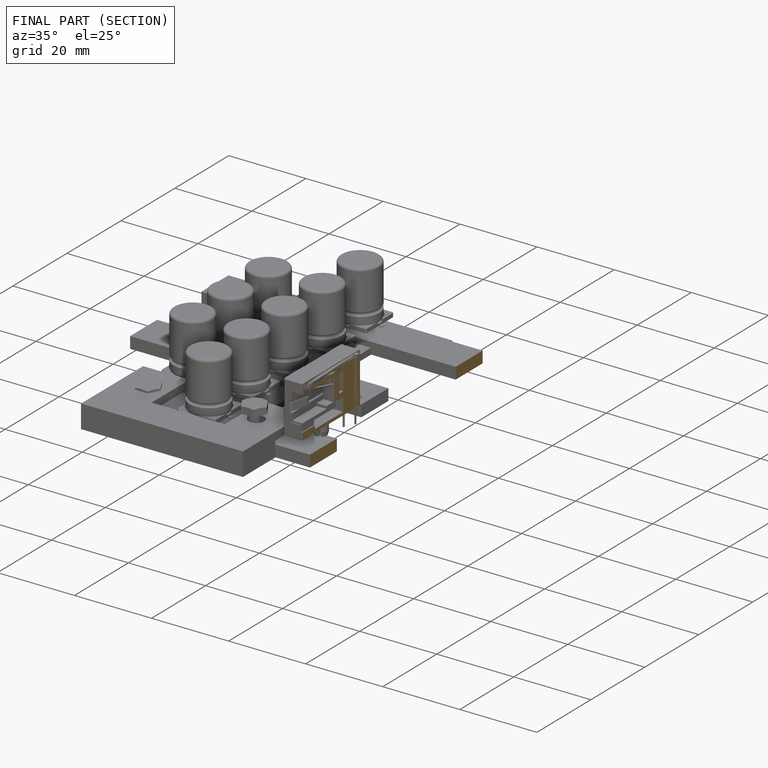
[diagram: finished part — half-section view (interior)]
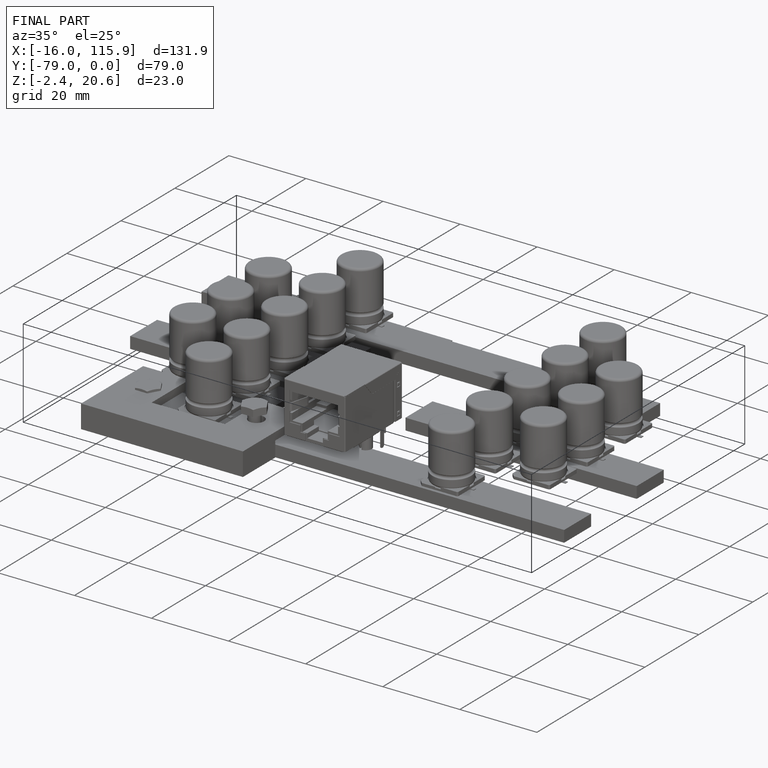
[diagram: finished part — iso view with bounding-box wireframe]
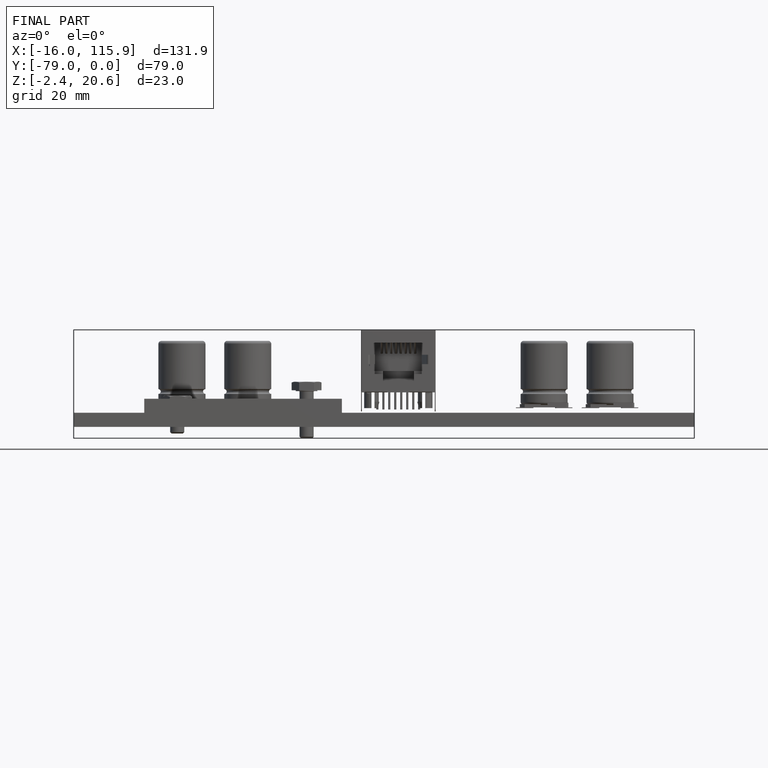
[diagram: finished part — front view with bounding-box wireframe]
